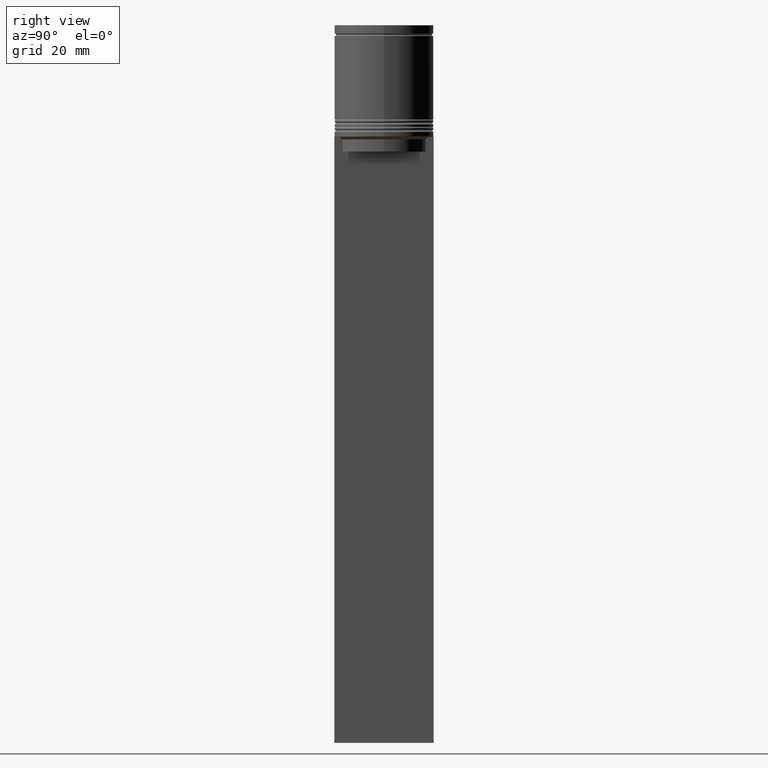
[diagram: clean part render]
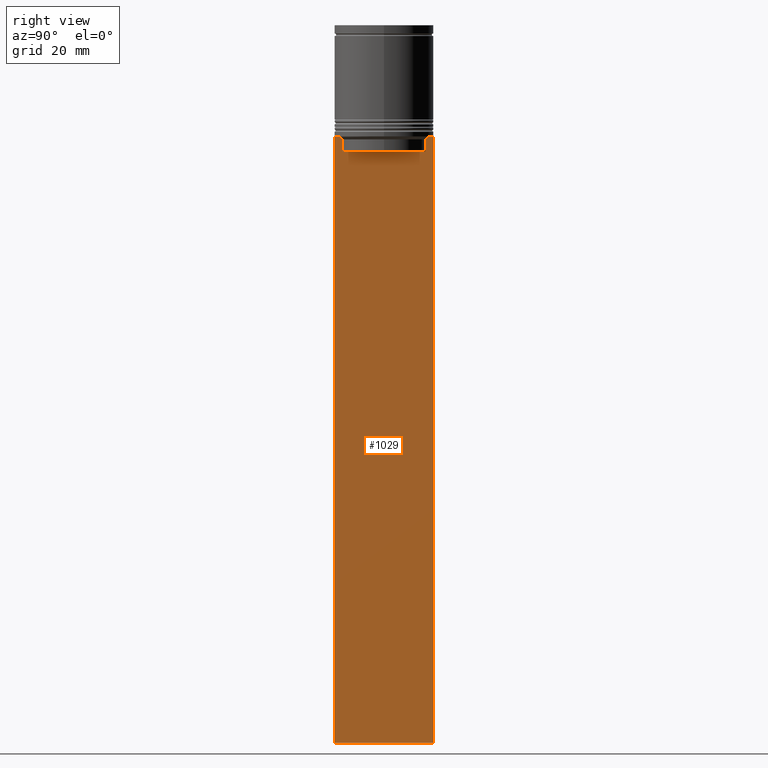
[diagram: same view with one face highlighted and labeled with its STEP entity id]
A machine part, right view. The second image highlights one B-rep face of the part: STEP entity #1029.
In plain terms, the highlighted planar face has unit normal (-1, 0, 0).
Its self-contained STEP definition (entity closure, byte-faithful):
#14 = VERTEX_POINT ( 'NONE', #545 ) ;
#44 = CARTESIAN_POINT ( 'NONE',  ( 0.5000000000000000000, 8.385105843100610912, 0.000000000000000000 ) ) ;
#67 = ORIENTED_EDGE ( 'NONE', *, *, #1190, .T. ) ;
#68 = DIRECTION ( 'NONE',  ( 0.000000000000000000, -1.000000000000000000, 0.000000000000000000 ) ) ;
#72 = EDGE_CURVE ( 'NONE', #1671, #1028, #1905, .T. ) ;
#101 = CARTESIAN_POINT ( 'NONE',  ( 0.5000000000000000000, 9.887365675446622149, -22.50000000000000000 ) ) ;
#118 = CARTESIAN_POINT ( 'NONE',  ( 0.5000000000000000000, 8.385105843100610912, -23.00000000000000000 ) ) ;
#122 = CARTESIAN_POINT ( 'NONE',  ( 0.5000000000000000000, -8.885943956609226646, -22.50000000000000000 ) ) ;
#176 = DIRECTION ( 'NONE',  ( 0.000000000000000000, 0.000000000000000000, 1.000000000000000000 ) ) ;
#184 = CARTESIAN_POINT ( 'NONE',  ( 0.5000000000000000000, -10.00000000000000178, -144.5000000000000000 ) ) ;
#240 = DIRECTION ( 'NONE',  ( 0.000000000000000000, -1.000000000000000000, 0.000000000000000000 ) ) ;
#249 = EDGE_CURVE ( 'NONE', #703, #1523, #1615, .T. ) ;
#263 = VECTOR ( 'NONE', #1937, 1000.000000000000000 ) ;
#267 = VECTOR ( 'NONE', #1628, 1000.000000000000000 ) ;
#294 = LINE ( 'NONE', #553, #642 ) ;
#307 = CARTESIAN_POINT ( 'NONE',  ( 0.5000000000000000000, -8.385105843100610912, -23.00000000000000000 ) ) ;
#308 = DIRECTION ( 'NONE',  ( 0.000000000000000000, -1.000000000000000000, 0.000000000000000000 ) ) ;
#330 = VECTOR ( 'NONE', #1324, 1000.000000000000000 ) ;
#336 = LINE ( 'NONE', #1295, #263 ) ;
#369 = AXIS2_PLACEMENT_3D ( 'NONE', #1778, #970, #176 ) ;
#386 = ORIENTED_EDGE ( 'NONE', *, *, #1750, .T. ) ;
#413 = VERTEX_POINT ( 'NONE', #101 ) ;
#446 = CARTESIAN_POINT ( 'NONE',  ( 0.5000000000000000000, 9.999999999999998224, -2.475015605499213844 ) ) ;
#500 = ORIENTED_EDGE ( 'NONE', *, *, #1269, .T. ) ;
#526 = DIRECTION ( 'NONE',  ( -0.000000000000000000, -0.000000000000000000, 1.000000000000000000 ) ) ;
#542 = EDGE_CURVE ( 'NONE', #14, #1523, #1879, .T. ) ;
#545 = CARTESIAN_POINT ( 'NONE',  ( 0.5000000000000000000, 9.999999999999998224, -22.50000000000000000 ) ) ;
#553 = CARTESIAN_POINT ( 'NONE',  ( 0.5000000000000000000, -10.00000000000000178, -22.50000000000000000 ) ) ;
#575 = ORIENTED_EDGE ( 'NONE', *, *, #542, .F. ) ;
#617 = CARTESIAN_POINT ( 'NONE',  ( 0.5000000000000000000, -8.719005764482785636, -22.66667454151159333 ) ) ;
#642 = VECTOR ( 'NONE', #1106, 1000.000000000000000 ) ;
#689 = CARTESIAN_POINT ( 'NONE',  ( 0.5000000000000000000, -10.00000000000000178, -144.5000000000000000 ) ) ;
#703 = VERTEX_POINT ( 'NONE', #689 ) ;
#705 = CARTESIAN_POINT ( 'NONE',  ( 0.5000000000000000000, 8.885943956609226646, -22.50000000000000000 ) ) ;
#802 = VECTOR ( 'NONE', #526, 1000.000000000000000 ) ;
#809 = CARTESIAN_POINT ( 'NONE',  ( 0.5000000000000000000, -8.552060194457766329, -22.83334167772666845 ) ) ;
#821 = DIRECTION ( 'NONE',  ( 0.000000000000000000, 0.000000000000000000, -1.000000000000000000 ) ) ;
#835 = LINE ( 'NONE', #1956, #802 ) ;
#880 = EDGE_CURVE ( 'NONE', #1280, #1823, #835, .T. ) ;
#911 = VECTOR ( 'NONE', #308, 1000.000000000000000 ) ;
#912 = CARTESIAN_POINT ( 'NONE',  ( 0.5000000000000000000, 8.885943956609226646, -22.50000000000000000 ) ) ;
#914 = ORIENTED_EDGE ( 'NONE', *, *, #1898, .T. ) ;
#947 = VECTOR ( 'NONE', #240, 1000.000000000000000 ) ;
#953 = CARTESIAN_POINT ( 'NONE',  ( 0.5000000000000000000, 8.719005771582343911, -22.66667453442325453 ) ) ;
#959 = CARTESIAN_POINT ( 'NONE',  ( 0.5000000000000000000, -10.00000000000000178, -22.50000000000000000 ) ) ;
#969 = LINE ( 'NONE', #1130, #947 ) ;
#970 = DIRECTION ( 'NONE',  ( -1.000000000000000000, 0.000000000000000000, 0.000000000000000000 ) ) ;
#980 = VECTOR ( 'NONE', #821, 1000.000000000000000 ) ;
#999 = CARTESIAN_POINT ( 'NONE',  ( 0.5000000000000000000, -10.00000000000000178, -22.50000000000000000 ) ) ;
#1015 = CARTESIAN_POINT ( 'NONE',  ( 0.5000000000000000000, -10.00000000000000178, -22.50000000000000000 ) ) ;
#1028 = VERTEX_POINT ( 'NONE', #1438 ) ;
#1029 = ADVANCED_FACE ( 'NONE', ( #1925 ), #1274, .F. ) ;
#1106 = DIRECTION ( 'NONE',  ( 0.000000000000000000, -1.000000000000000000, 0.000000000000000000 ) ) ;
#1130 = CARTESIAN_POINT ( 'NONE',  ( 0.5000000000000000000, 8.400000000000000355, -25.50000000000000000 ) ) ;
#1190 = EDGE_CURVE ( 'NONE', #1440, #1280, #969, .T. ) ;
#1191 = ORIENTED_EDGE ( 'NONE', *, *, #880, .T. ) ;
#1219 = EDGE_CURVE ( 'NONE', #1832, #1910, #1799, .T. ) ;
#1259 = EDGE_CURVE ( 'NONE', #1823, #1832, #1586, .T. ) ;
#1269 = EDGE_CURVE ( 'NONE', #413, #1671, #1399, .T. ) ;
#1274 = PLANE ( 'NONE',  #369 ) ;
#1280 = VERTEX_POINT ( 'NONE', #2067 ) ;
#1295 = CARTESIAN_POINT ( 'NONE',  ( 0.5000000000000000000, -10.00000000000000178, -2.475015605499213844 ) ) ;
#1324 = DIRECTION ( 'NONE',  ( 0.000000000000000000, 1.000000000000000000, 0.000000000000000000 ) ) ;
#1370 = VECTOR ( 'NONE', #68, 1000.000000000000000 ) ;
#1389 = EDGE_LOOP ( 'NONE', ( #500, #1904, #1447, #67, #1191, #1656, #1890, #386, #914, #2026, #575, #2084 ) ) ;
#1399 = LINE ( 'NONE', #959, #911 ) ;
#1438 = CARTESIAN_POINT ( 'NONE',  ( 0.5000000000000000000, 8.385105843100610912, -23.00000000000000000 ) ) ;
#1439 = CARTESIAN_POINT ( 'NONE',  ( 0.5000000000000000000, 9.999999999999998224, -144.5000000000000000 ) ) ;
#1440 = VERTEX_POINT ( 'NONE', #1928 ) ;
#1447 = ORIENTED_EDGE ( 'NONE', *, *, #1581, .T. ) ;
#1470 = CARTESIAN_POINT ( 'NONE',  ( 0.5000000000000000000, -10.00000000000000178, -22.50000000000000000 ) ) ;
#1486 = LINE ( 'NONE', #1470, #1370 ) ;
#1523 = VERTEX_POINT ( 'NONE', #1439 ) ;
#1550 = VERTEX_POINT ( 'NONE', #1015 ) ;
#1554 = DIRECTION ( 'NONE',  ( 0.000000000000000000, 0.000000000000000000, -1.000000000000000000 ) ) ;
#1581 = EDGE_CURVE ( 'NONE', #1028, #1440, #1608, .T. ) ;
#1586 = B_SPLINE_CURVE_WITH_KNOTS ( 'NONE', 3,
 ( #1595, #809, #617, #122 ),
 .UNSPECIFIED., .F., .F.,
 ( 4, 4 ),
 ( 0.03898465126933124691, 0.03969388910599652709 ),
 .UNSPECIFIED. ) ;
#1595 = CARTESIAN_POINT ( 'NONE',  ( 0.5000000000000000000, -8.385105843100610912, -23.00000000000000000 ) ) ;
#1608 = LINE ( 'NONE', #44, #980 ) ;
#1615 = LINE ( 'NONE', #184, #330 ) ;
#1628 = DIRECTION ( 'NONE',  ( 0.000000000000000000, -1.000000000000000000, 0.000000000000000000 ) ) ;
#1656 = ORIENTED_EDGE ( 'NONE', *, *, #1259, .T. ) ;
#1671 = VERTEX_POINT ( 'NONE', #705 ) ;
#1750 = EDGE_CURVE ( 'NONE', #1910, #1550, #294, .T. ) ;
#1778 = CARTESIAN_POINT ( 'NONE',  ( 0.5000000000000000000, -10.00000000000000178, -2.475015605499213844 ) ) ;
#1799 = LINE ( 'NONE', #999, #267 ) ;
#1806 = VECTOR ( 'NONE', #1554, 1000.000000000000000 ) ;
#1823 = VERTEX_POINT ( 'NONE', #307 ) ;
#1832 = VERTEX_POINT ( 'NONE', #1981 ) ;
#1879 = LINE ( 'NONE', #446, #1806 ) ;
#1890 = ORIENTED_EDGE ( 'NONE', *, *, #1219, .T. ) ;
#1893 = CARTESIAN_POINT ( 'NONE',  ( 0.5000000000000000000, 8.552060201981371179, -22.83334167021640582 ) ) ;
#1898 = EDGE_CURVE ( 'NONE', #1550, #703, #336, .T. ) ;
#1904 = ORIENTED_EDGE ( 'NONE', *, *, #72, .T. ) ;
#1905 = B_SPLINE_CURVE_WITH_KNOTS ( 'NONE', 3,
 ( #912, #953, #1893, #118 ),
 .UNSPECIFIED., .F., .F.,
 ( 4, 4 ),
 ( 0.01511546479386905242, 0.01582316445439077568 ),
 .UNSPECIFIED. ) ;
#1910 = VERTEX_POINT ( 'NONE', #1931 ) ;
#1925 = FACE_OUTER_BOUND ( 'NONE', #1389, .T. ) ;
#1928 = CARTESIAN_POINT ( 'NONE',  ( 0.5000000000000000000, 8.385105843100610912, -25.50000000000000000 ) ) ;
#1931 = CARTESIAN_POINT ( 'NONE',  ( 0.5000000000000000000, -9.887365675446622149, -22.50000000000000000 ) ) ;
#1937 = DIRECTION ( 'NONE',  ( 0.000000000000000000, 0.000000000000000000, -1.000000000000000000 ) ) ;
#1956 = CARTESIAN_POINT ( 'NONE',  ( 0.5000000000000000000, -8.385105843100610912, 0.000000000000000000 ) ) ;
#1981 = CARTESIAN_POINT ( 'NONE',  ( 0.5000000000000000000, -8.885943956609226646, -22.50000000000000000 ) ) ;
#2023 = EDGE_CURVE ( 'NONE', #14, #413, #1486, .T. ) ;
#2026 = ORIENTED_EDGE ( 'NONE', *, *, #249, .T. ) ;
#2067 = CARTESIAN_POINT ( 'NONE',  ( 0.5000000000000000000, -8.385105843100610912, -25.50000000000000000 ) ) ;
#2084 = ORIENTED_EDGE ( 'NONE', *, *, #2023, .T. ) ;